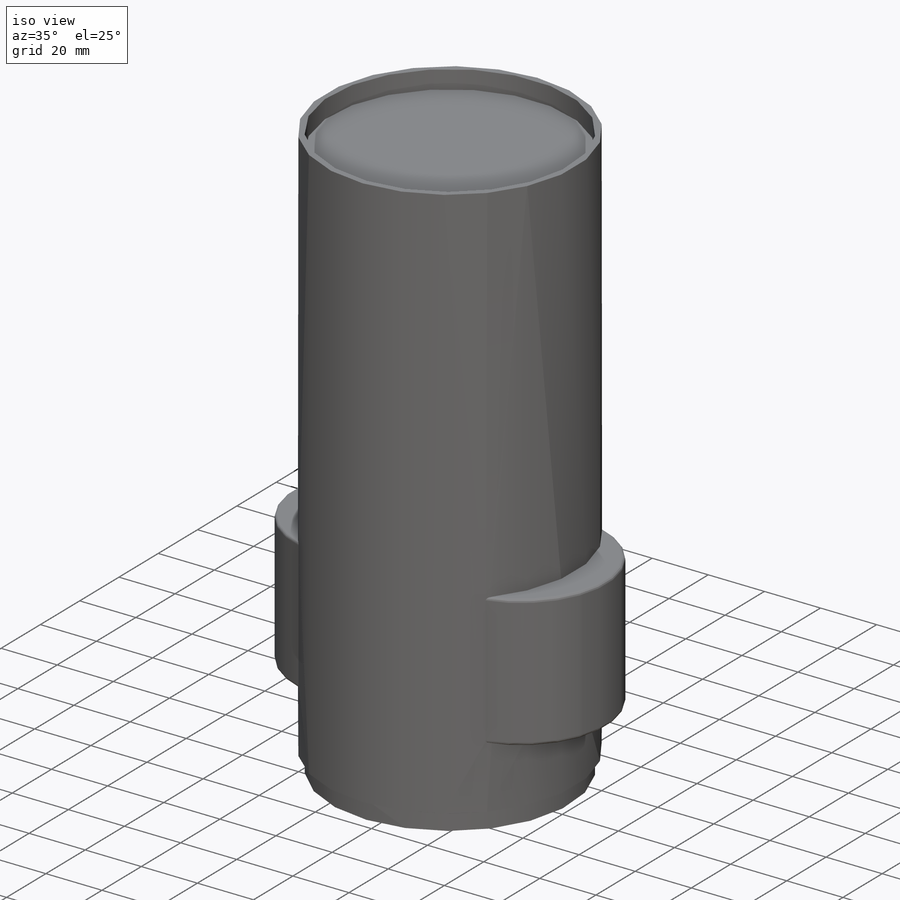
[diagram: iso view]
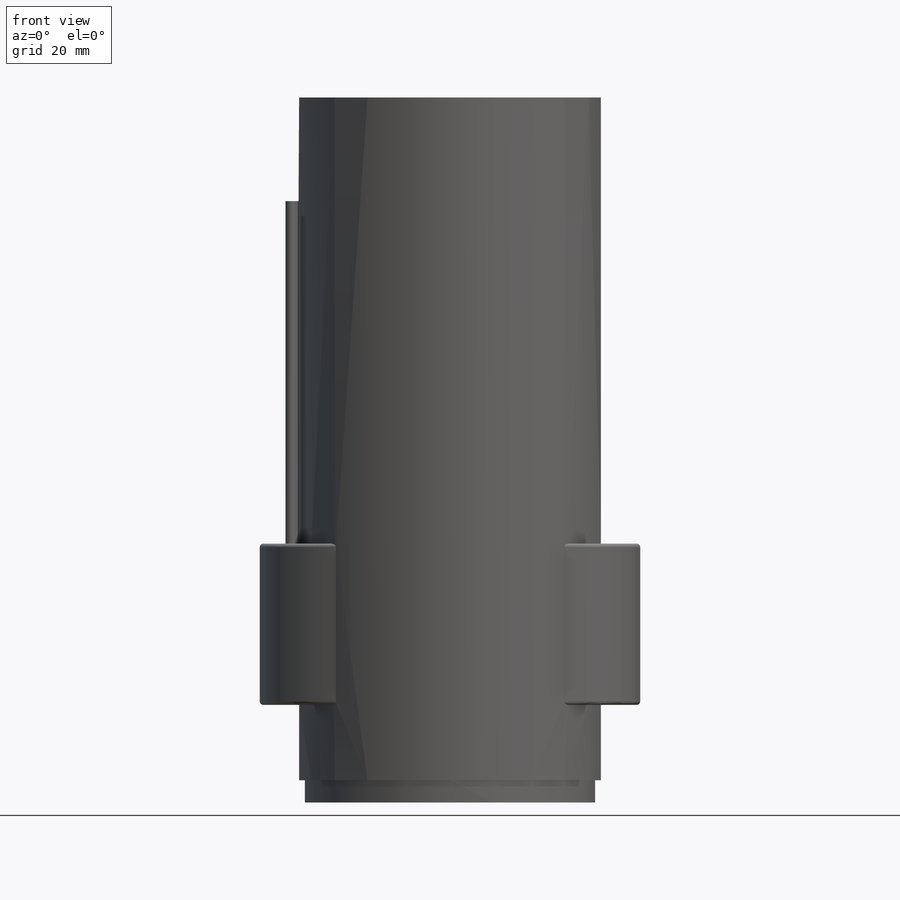
[diagram: front view]
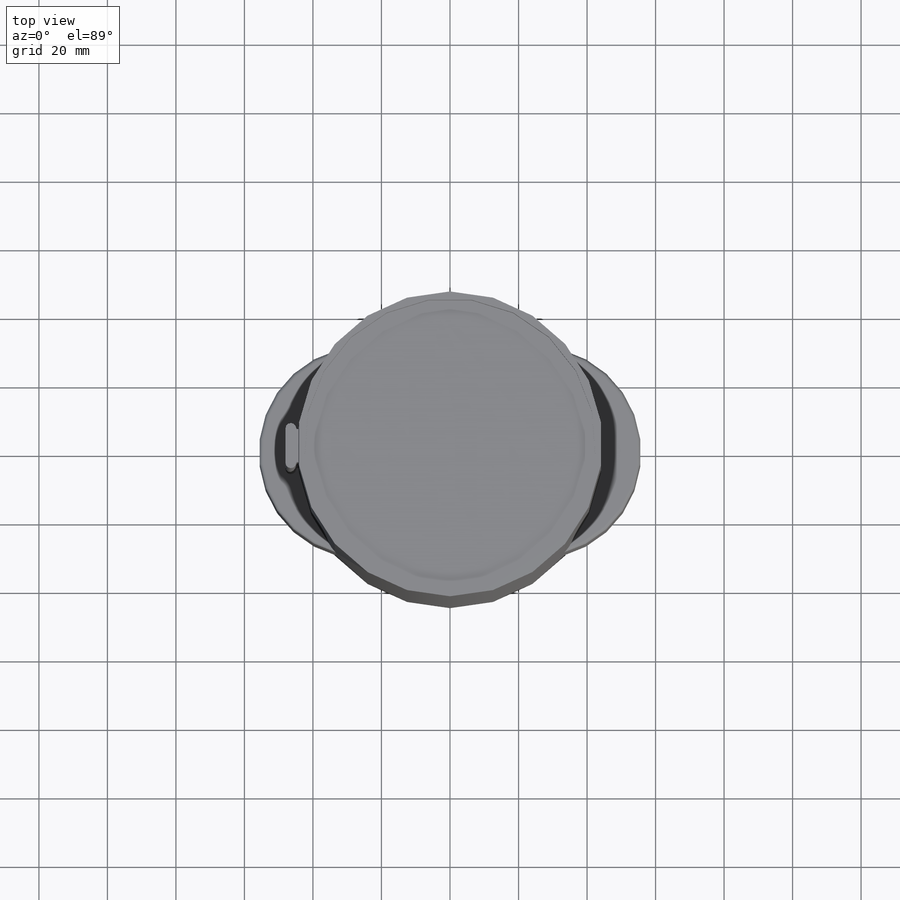
[diagram: top view]
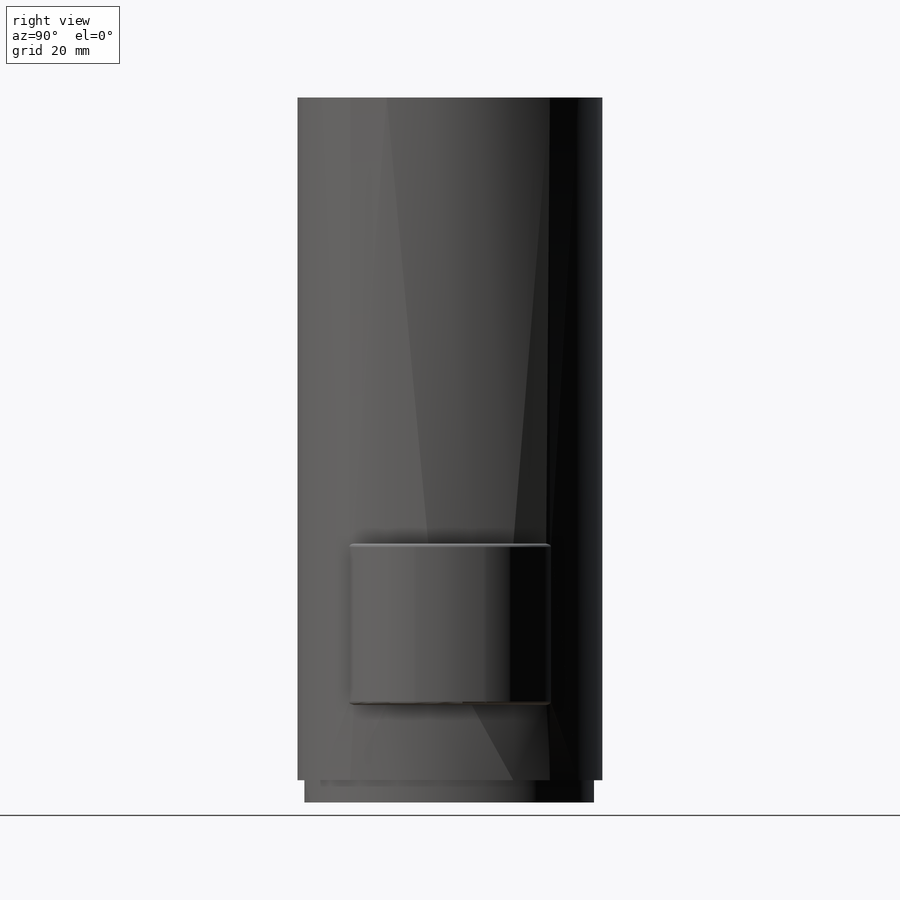
[diagram: right view]
SOLIDWORKS PART (.sldprt)
format: sldprt  version: not decoded by parser v0  size: 213,504 bytes
history: native  units: mm
features: sketch x3, extrude x2, fillet x2, material x1, revolve x1, plane x1 (+11 scaffold rows collapsed)
feature tree (21):
  scaffold x11  (default folders/planes/origin — collapsed)
  material  "Material <not specified>"
  sketch  "Sketch1"  dims[D1=89.0mm D2=6.5mm D3=85.0mm D4=199.3mm]
  revolve  "Revolve1"  Angle=360deg
  plane  "Plane1"  Offset=22mm
  sketch  "Sketch2"  dims[c1.D2=61.2mm c1.D1=~33.562591mm c2.D1=50.3mm]
  extrude  "Extrude1"  Depth=47.07mm
  sketch  "Sketch3"  dims[c1.D2=~4.609919mm c1.D3=1.563mm c1.D4=0.7mm c1.D1=48.03mm c2.D2=10.0mm c2.D4=~0.281791mm c2.D1=48.03mm]
  extrude  "Extrude2"  Depth=100mm
  fillet  "Fillet1"  Radius=1mm
  fillet  "Axis2"  [1 undecoded]
decode coverage: 7 of 8 modeling features carry decoded parameters
note: ~ marks probable driven/reference dimensions
note: 1 parameter value undecoded
note: suppression state not decoded; provenance and decode notes live in map.json
